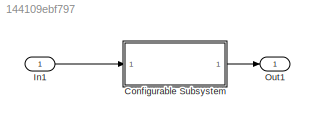
MODEL slx_144109ebf797
KIND model
CONFIG AbsTol = auto
CONFIG EnableMultiTasking = off
CONFIG FixedStep = 1.000000
CONFIG MaxStep = auto
CONFIG MinStep = auto
CONFIG RelTol = 1e-3
CONFIG SampleTimeConstraint = Unconstrained
CONFIG Solver = FixedStepAuto
CONFIG SolverName = FixedStepAuto
CONFIG StartTime = 0.0
CONFIG StopTime = 10.0
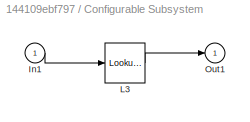
BLOCK [SubSystem] Configurable Subsystem
  AttributesFormatString = %<BlockChoice>
  BlockChoice = L3
  MemberBlocks = L1,L2,L3
  Ports = [1, 1]
  RequestExecContextInheritance = off
  TemplateBlock = library_test/Configurable\nSubsystem
  Variant = off
BLOCK [Inport] Configurable Subsystem/In1
  IconDisplay = Port number
BLOCK [Lookup_n-D] Configurable Subsystem/L3
  BreakpointsForDimension1 = [-5:5]
  InternalRulePriority = Speed
  NumberOfTableDimensions = 1
  Ports = [1, 1]
  RndMeth = Simplest
  Table = sin([-5:5])
BLOCK [Outport] Configurable Subsystem/Out1
  IconDisplay = Port number
BLOCK [Inport] In1
  IconDisplay = Port number
BLOCK [Outport] Out1
  IconDisplay = Port number
LINE Configurable Subsystem:1 -> Out1:1
LINE In1:1 -> Configurable Subsystem:1
